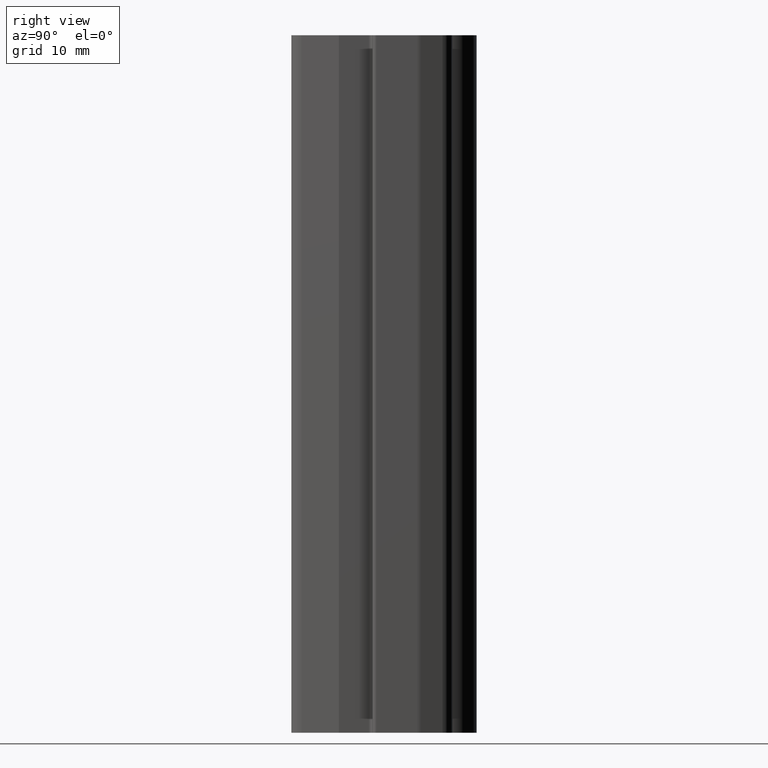
[diagram: clean part render]
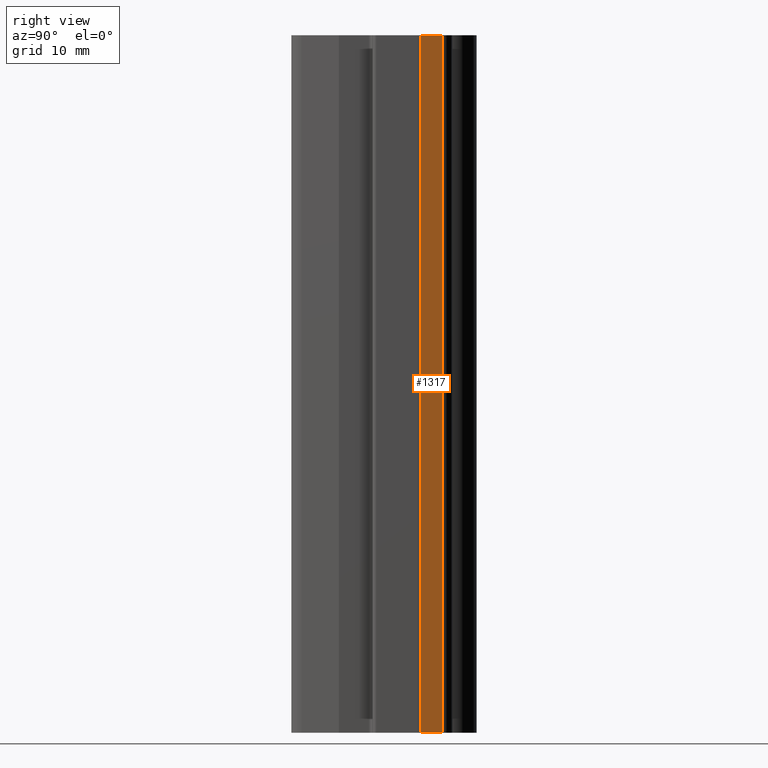
[diagram: same view with one face highlighted and labeled with its STEP entity id]
A machine part, right view. The second image highlights one B-rep face of the part: STEP entity #1317.
In plain terms, the highlighted planar face has unit normal (0.9628, 0.2703, 0).
Its self-contained STEP definition (entity closure, byte-faithful):
#78=FACE_OUTER_BOUND('',#146,.T.);
#146=EDGE_LOOP('',(#961,#962,#963,#964));
#198=LINE('',#1997,#308);
#242=LINE('',#2162,#352);
#243=LINE('',#2165,#353);
#244=LINE('',#2166,#354);
#308=VECTOR('',#1579,10.);
#352=VECTOR('',#1743,10.);
#353=VECTOR('',#1746,10.);
#354=VECTOR('',#1747,10.);
#516=VERTEX_POINT('',#1994);
#517=VERTEX_POINT('',#1996);
#578=VERTEX_POINT('',#2160);
#579=VERTEX_POINT('',#2164);
#644=EDGE_CURVE('',#516,#517,#198,.T.);
#727=EDGE_CURVE('',#578,#516,#242,.T.);
#728=EDGE_CURVE('',#579,#578,#243,.T.);
#729=EDGE_CURVE('',#579,#517,#244,.T.);
#961=ORIENTED_EDGE('',*,*,#727,.F.);
#962=ORIENTED_EDGE('',*,*,#728,.F.);
#963=ORIENTED_EDGE('',*,*,#729,.T.);
#964=ORIENTED_EDGE('',*,*,#644,.F.);
#1205=PLANE('',#1464);
#1317=ADVANCED_FACE('',(#78),#1205,.T.);
#1464=AXIS2_PLACEMENT_3D('',#2163,#1744,#1745);
#1579=DIRECTION('',(0.270250935068617,-0.962789921059905,0.));
#1743=DIRECTION('',(0.,0.,-1.));
#1744=DIRECTION('center_axis',(0.962789921059905,0.270250935068617,0.));
#1745=DIRECTION('ref_axis',(-0.270250935068617,0.962789921059905,0.));
#1746=DIRECTION('',(-0.270250935068617,0.962789921059905,0.));
#1747=DIRECTION('',(0.,0.,-1.));
#1994=CARTESIAN_POINT('',(7.55967476465897,0.0405018701368887,-50.));
#1996=CARTESIAN_POINT('',(8.42557984211973,-3.04435214142144,-50.));
#1997=CARTESIAN_POINT('',(7.55967476465897,0.0405018701368895,-50.));
#2160=CARTESIAN_POINT('',(7.55967476465897,0.0405018701368887,50.));
#2162=CARTESIAN_POINT('',(7.55967476465897,0.0405018701368895,0.));
#2163=CARTESIAN_POINT('Origin',(8.42557984211973,-3.04435214142144,0.));
#2164=CARTESIAN_POINT('',(8.42557984211973,-3.04435214142144,50.));
#2165=CARTESIAN_POINT('',(7.55967476465897,0.0405018701368895,50.));
#2166=CARTESIAN_POINT('',(8.42557984211973,-3.04435214142144,0.));